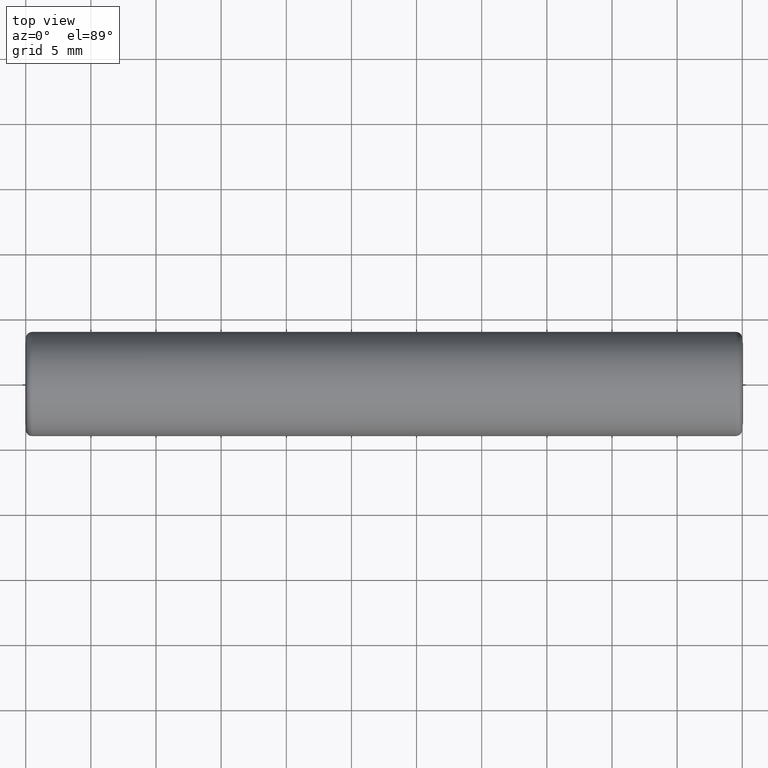
[diagram: clean part render]
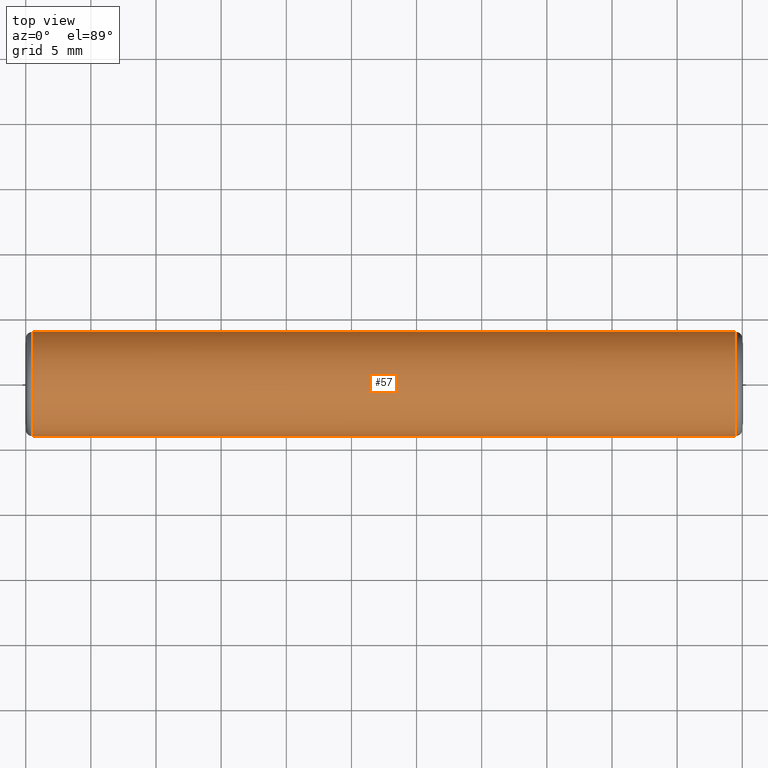
[diagram: same view with one face highlighted and labeled with its STEP entity id]
A machine part, top view. The second image highlights one B-rep face of the part: STEP entity #57.
In plain terms, the highlighted cylindrical surface (bore or boss wall) has radius 4 mm, axis along (1, 0, 0).
Its self-contained STEP definition (entity closure, byte-faithful):
#17=CYLINDRICAL_SURFACE('',#66,4.);
#19=FACE_BOUND('',#29,.T.);
#22=FACE_OUTER_BOUND('',#28,.T.);
#28=EDGE_LOOP('',(#48));
#29=EDGE_LOOP('',(#49));
#35=CIRCLE('',#65,4.);
#36=CIRCLE('',#67,4.);
#39=VERTEX_POINT('',#96);
#40=VERTEX_POINT('',#99);
#43=EDGE_CURVE('',#39,#39,#35,.T.);
#44=EDGE_CURVE('',#40,#40,#36,.T.);
#48=ORIENTED_EDGE('',*,*,#44,.F.);
#49=ORIENTED_EDGE('',*,*,#43,.F.);
#57=ADVANCED_FACE('',(#22,#19),#17,.T.);
#65=AXIS2_PLACEMENT_3D('',#97,#78,#79);
#66=AXIS2_PLACEMENT_3D('',#98,#80,#81);
#67=AXIS2_PLACEMENT_3D('',#100,#82,#83);
#78=DIRECTION('center_axis',(-1.,0.,0.));
#79=DIRECTION('ref_axis',(0.,-1.,1.22464679914735E-16));
#80=DIRECTION('center_axis',(1.,0.,0.));
#81=DIRECTION('ref_axis',(0.,1.,0.));
#82=DIRECTION('center_axis',(1.,0.,0.));
#83=DIRECTION('ref_axis',(0.,-1.,1.22464679914735E-16));
#96=CARTESIAN_POINT('',(0.499999999999998,4.,-9.79717439317883E-16));
#97=CARTESIAN_POINT('Origin',(0.499999999999998,0.,0.));
#98=CARTESIAN_POINT('Origin',(27.5,0.,0.));
#99=CARTESIAN_POINT('',(54.5,4.,0.));
#100=CARTESIAN_POINT('Origin',(54.5,0.,0.));